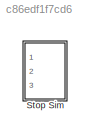
MODEL slx_c86edf1f7cd6
KIND library
CONFIG AbsTol = auto
CONFIG EnableMultiTasking = off
CONFIG FixedStep = auto
CONFIG MaxStep = auto
CONFIG MinStep = auto
CONFIG RelTol = 1e-3
CONFIG SampleTimeConstraint = Unconstrained
CONFIG Solver = VariableStepAuto
CONFIG SolverName = VariableStepAuto
CONFIG StartTime = 0.0
CONFIG StopTime = 10.0
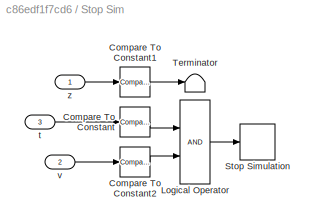
BLOCK [SubSystem] Stop Sim
  Ports = [3]
  RequestExecContextInheritance = off
BLOCK [Reference] Stop Sim/Compare To Constant  REF=simulink/Logic and Bit
Operations/Compare
To Constant
  Ports = [1, 1]
  SourceBlock = simulink/Logic and Bit\nOperations/Compare\nTo Constant
  SourceProductBaseCode = SL
  SourceType = Compare To Constant
BLOCK [Reference] Stop Sim/Compare To Constant1  REF=simulink/Logic and Bit
Operations/Compare
To Constant
  Ports = [1, 1]
  SourceBlock = simulink/Logic and Bit\nOperations/Compare\nTo Constant
  SourceProductBaseCode = SL
  SourceType = Compare To Constant
BLOCK [Reference] Stop Sim/Compare To Constant2  REF=simulink/Logic and Bit
Operations/Compare
To Constant
  Ports = [1, 1]
  SourceBlock = simulink/Logic and Bit\nOperations/Compare\nTo Constant
  SourceProductBaseCode = SL
  SourceType = Compare To Constant
BLOCK [Logic] Stop Sim/Logical Operator
  AllPortsSameDT = off
  OutDataTypeStr = boolean
  Ports = [2, 1]
BLOCK [Stop] Stop Sim/Stop Simulation
BLOCK [Terminator] Stop Sim/Terminator
BLOCK [Inport] Stop Sim/t
  Port = 3
BLOCK [Inport] Stop Sim/v
  Port = 2
BLOCK [Inport] Stop Sim/z
LINE Stop Sim/Compare To Constant1:1 -> Stop Sim/Terminator:1
LINE Stop Sim/Compare To Constant2:1 -> Stop Sim/Logical Operator:2
LINE Stop Sim/Compare To Constant:1 -> Stop Sim/Logical Operator:1
LINE Stop Sim/Logical Operator:1 -> Stop Sim/Stop Simulation:1
LINE Stop Sim/t:1 -> Stop Sim/Compare To Constant:1
LINE Stop Sim/v:1 -> Stop Sim/Compare To Constant2:1
LINE Stop Sim/z:1 -> Stop Sim/Compare To Constant1:1
